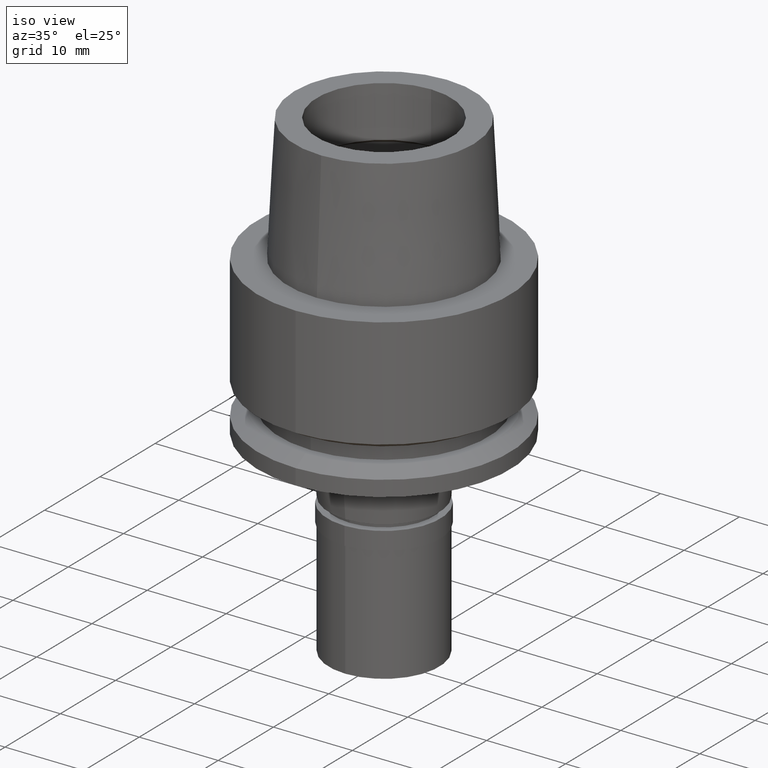
[diagram: clean part render]
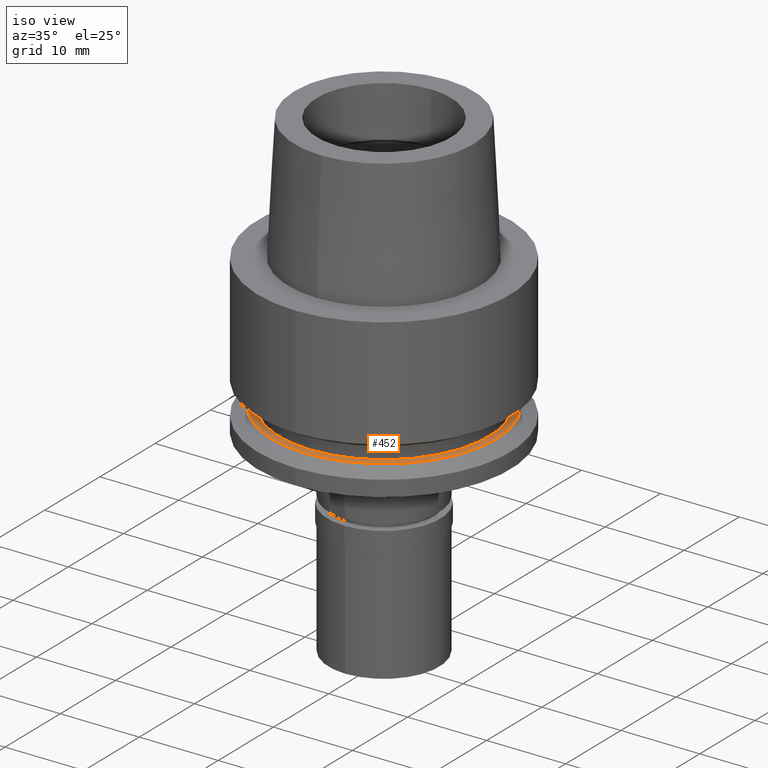
[diagram: same view with one face highlighted and labeled with its STEP entity id]
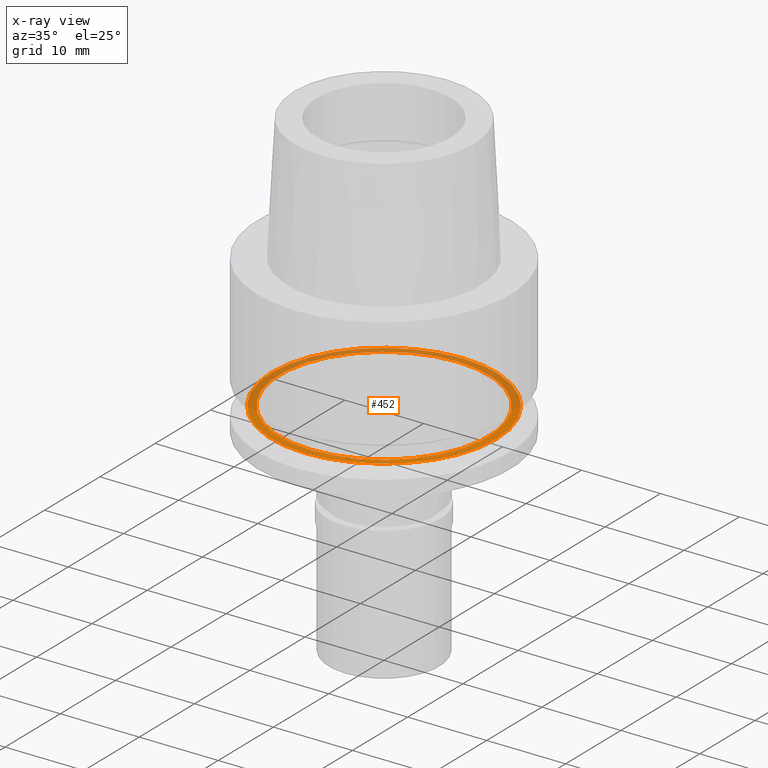
[diagram: x-ray of the same camera — body ghosted, the highlighted face saturated]
A machine part, iso view. The second image highlights one B-rep face of the part: STEP entity #452.
The next image is the same camera in x-ray: the body ghosted, the highlighted face saturated — about 52% of this face is hidden behind the body in this view.
In plain terms, the highlighted planar face has unit normal (0, 0, -1).
Its self-contained STEP definition (entity closure, byte-faithful):
#26 = VERTEX_POINT ( 'NONE', #264 ) ;
#27 = CIRCLE ( 'NONE', #1992, 14.23205080756999941 ) ;
#66 = CARTESIAN_POINT ( 'NONE',  ( 0.0000000000000000000, 0.0000000000000000000, -17.00000000000000000 ) ) ;
#87 = VERTEX_POINT ( 'NONE', #1931 ) ;
#235 = ORIENTED_EDGE ( 'NONE', *, *, #2378, .F. ) ;
#264 = CARTESIAN_POINT ( 'NONE',  ( 0.0000000000000000000, 13.25000000000000000, -17.00000000000000000 ) ) ;
#290 = EDGE_CURVE ( 'NONE', #87, #876, #1941, .T. ) ;
#336 = DIRECTION ( 'NONE',  ( 0.0000000000000000000, 0.0000000000000000000, -1.000000000000000000 ) ) ;
#417 = VERTEX_POINT ( 'NONE', #2012 ) ;
#423 = CARTESIAN_POINT ( 'NONE',  ( 0.0000000000000000000, -14.23205080756999941, -17.00000000000000000 ) ) ;
#452 = ADVANCED_FACE ( 'NONE', ( #1390, #2427 ), #2560, .F. ) ;
#493 = AXIS2_PLACEMENT_3D ( 'NONE', #714, #1572, #2399 ) ;
#531 = EDGE_CURVE ( 'NONE', #26, #417, #1692, .T. ) ;
#632 = DIRECTION ( 'NONE',  ( 0.0000000000000000000, 0.0000000000000000000, 1.000000000000000000 ) ) ;
#650 = DIRECTION ( 'NONE',  ( 0.0000000000000000000, 0.0000000000000000000, -1.000000000000000000 ) ) ;
#714 = CARTESIAN_POINT ( 'NONE',  ( 0.0000000000000000000, 0.0000000000000000000, -17.00000000000000000 ) ) ;
#736 = ORIENTED_EDGE ( 'NONE', *, *, #531, .F. ) ;
#876 = VERTEX_POINT ( 'NONE', #423 ) ;
#893 = EDGE_CURVE ( 'NONE', #417, #26, #1417, .T. ) ;
#1053 = CARTESIAN_POINT ( 'NONE',  ( 0.0000000000000000000, 0.0000000000000000000, -17.00000000000000000 ) ) ;
#1150 = ORIENTED_EDGE ( 'NONE', *, *, #893, .F. ) ;
#1218 = EDGE_LOOP ( 'NONE', ( #1242, #235 ) ) ;
#1242 = ORIENTED_EDGE ( 'NONE', *, *, #290, .F. ) ;
#1264 = CARTESIAN_POINT ( 'NONE',  ( 0.0000000000000000000, 0.0000000000000000000, -17.00000000000000000 ) ) ;
#1291 = DIRECTION ( 'NONE',  ( 0.0000000000000000000, 1.000000000000000000, 0.0000000000000000000 ) ) ;
#1361 = DIRECTION ( 'NONE',  ( 0.0000000000000000000, -1.000000000000000000, 0.0000000000000000000 ) ) ;
#1390 = FACE_OUTER_BOUND ( 'NONE', #1218, .T. ) ;
#1417 = CIRCLE ( 'NONE', #1503, 13.25000000000000000 ) ;
#1503 = AXIS2_PLACEMENT_3D ( 'NONE', #1264, #632, #1637 ) ;
#1529 = DIRECTION ( 'NONE',  ( 0.0000000000000000000, -1.000000000000000000, 0.0000000000000000000 ) ) ;
#1572 = DIRECTION ( 'NONE',  ( 0.0000000000000000000, 0.0000000000000000000, 1.000000000000000000 ) ) ;
#1593 = EDGE_LOOP ( 'NONE', ( #736, #1150 ) ) ;
#1637 = DIRECTION ( 'NONE',  ( 0.0000000000000000000, -1.000000000000000000, 0.0000000000000000000 ) ) ;
#1692 = CIRCLE ( 'NONE', #493, 13.25000000000000000 ) ;
#1750 = DIRECTION ( 'NONE',  ( 0.0000000000000000000, 0.0000000000000000000, -1.000000000000000000 ) ) ;
#1903 = AXIS2_PLACEMENT_3D ( 'NONE', #66, #336, #1529 ) ;
#1931 = CARTESIAN_POINT ( 'NONE',  ( 0.0000000000000000000, 14.23205080756999941, -17.00000000000000000 ) ) ;
#1941 = CIRCLE ( 'NONE', #2454, 14.23205080756999941 ) ;
#1992 = AXIS2_PLACEMENT_3D ( 'NONE', #2199, #1750, #1361 ) ;
#2012 = CARTESIAN_POINT ( 'NONE',  ( 0.0000000000000000000, -13.25000000000000000, -17.00000000000000000 ) ) ;
#2199 = CARTESIAN_POINT ( 'NONE',  ( 0.0000000000000000000, 0.0000000000000000000, -17.00000000000000000 ) ) ;
#2378 = EDGE_CURVE ( 'NONE', #876, #87, #27, .T. ) ;
#2399 = DIRECTION ( 'NONE',  ( 0.0000000000000000000, 1.000000000000000000, 0.0000000000000000000 ) ) ;
#2427 = FACE_BOUND ( 'NONE', #1593, .T. ) ;
#2454 = AXIS2_PLACEMENT_3D ( 'NONE', #1053, #650, #1291 ) ;
#2560 = PLANE ( 'NONE',  #1903 ) ;